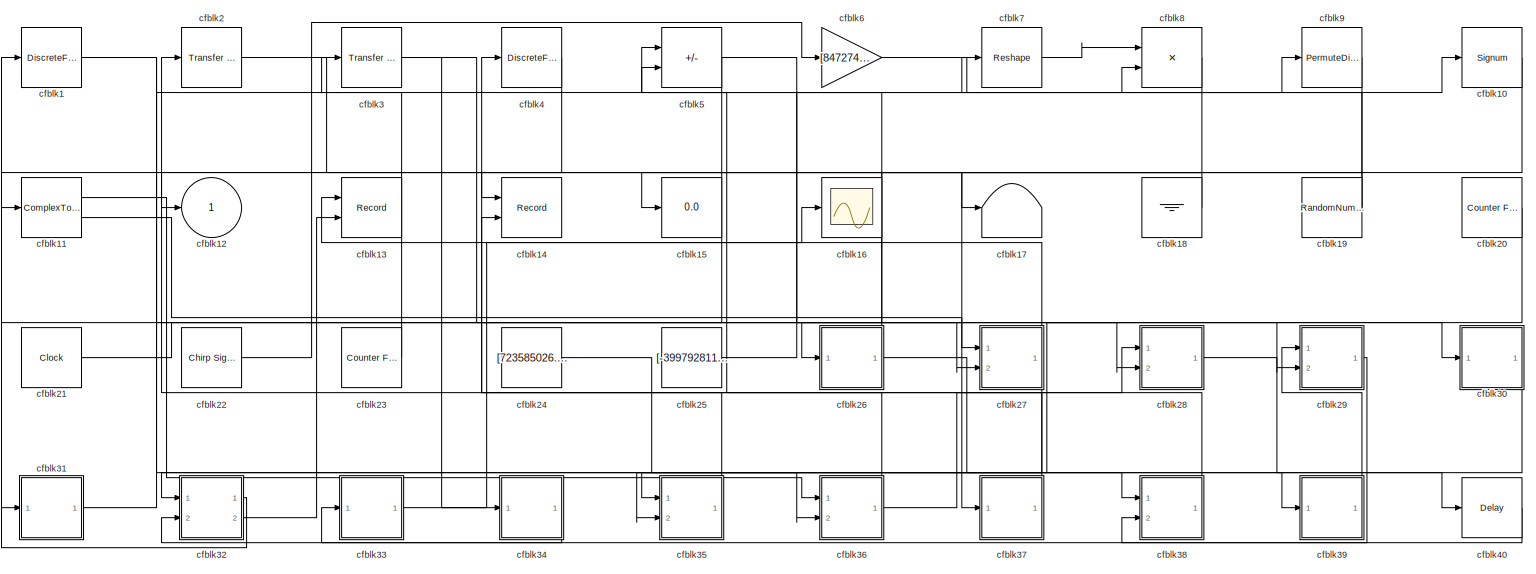
[diagram: root canvas - part 1/1, most of the canvas]
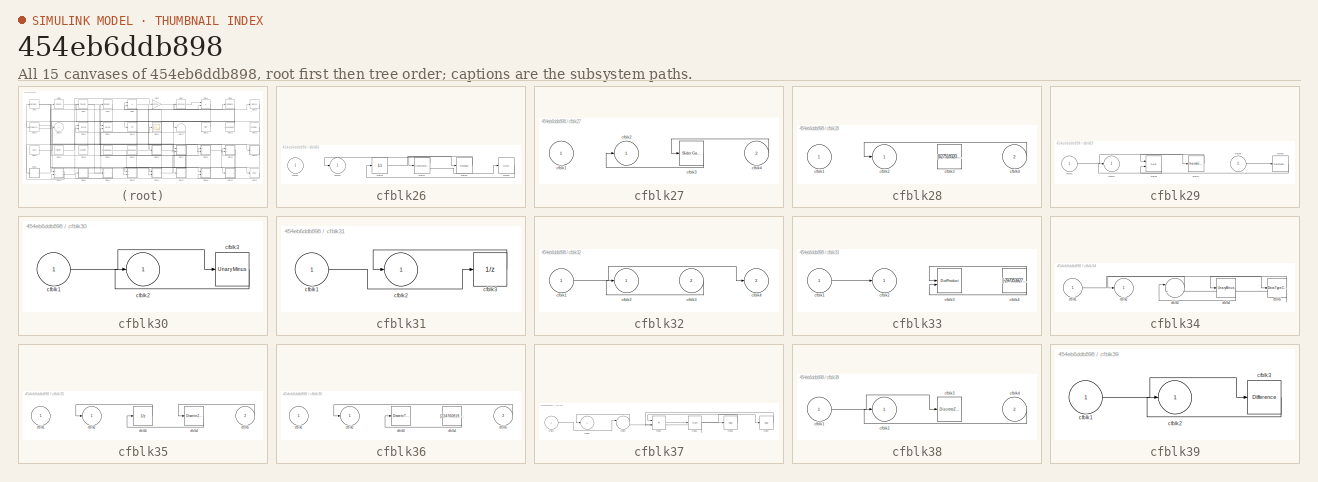
[diagram: thumbnail index - all 15 canvases of the model, root first then tree order]
MODEL slx_454eb6ddb898
KIND model
CONFIG AbsTol = auto
CONFIG EnableMultiTasking = off
CONFIG FixedStep = auto
CONFIG MaxStep = auto
CONFIG MinStep = auto
CONFIG RelTol = 1e-3
CONFIG SampleTimeConstraint = Unconstrained
CONFIG SolverName = VariableStepAuto
CONFIG StartTime = 0.0
CONFIG StopTime = 10.0
BLOCK [DiscreteFir] cfblk1
  InputPortMap = u0
  OutputPortMap = o0
  Ports = [1, 1]
  SampleTime = 1
BLOCK [Signum] cfblk10
BLOCK [ComplexToMagnitudeAngle] cfblk11
  Ports = [1, 2]
BLOCK [Outport] cfblk12
BLOCK [Record] cfblk13
  CompatibilityTag = XY
  FileSettingsInternal = {"entries":[{"content":{"excelSettings":{"content":{},"type":"Streamout.ExcelSettings"}},"type":"Streamout.FileSettingStorage","uuid":"afcd1033-900c-4ee9-9df4-e3060ae59736"}],"packageUris":["http://schema.mathworks.com/mf0/streamout_blocks/R2020a"],"version":"1.0"}
  Layout = [1 1]
  Ports = [2]
  SignalsInternal = {"entries":[{"content":{"signals":[{"content":{"blockPath":["sampleModel211/cfblk13"],"channel":[],"dimensions":[1],"domain":"sampleModel211/cfblk13","lineColor":"#a2142f","plots":[1],"port":1,"sid":[""],"signalID":8172,"signalName":"cfblk27"},"type":"RecordBlkView.Signal","uuid":"39aa8972-9eb6-4579-9132-f180a06a49c1"},{"content":{"blockPath":["sampleModel211/cfblk13"],"channel":[],"dimensions":[1...<+385ch>
  VisualizationBindings = {"xyplotplugin":{"info":[{"series":[{"bindingParametersList":[{"parameter":"X-Axis","signalID":8172,"signalName":"cfblk27"},{"parameter":"Y-Axis","signalID":8178,"signalName":"cfblk32:2"}],"seriesID":42711}],"subplotID":1}]}}
BLOCK [Record] cfblk14
  CompatibilityTag = XY
  FileSettingsInternal = {"entries":[{"content":{"excelSettings":{"content":{},"type":"Streamout.ExcelSettings"}},"type":"Streamout.FileSettingStorage","uuid":"20000c39-0e0b-4ded-a58f-0152ac3ac14a"}],"packageUris":["http://schema.mathworks.com/mf0/streamout_blocks/R2020a"],"version":"1.0"}
  Layout = [1 1]
  Ports = [2]
  SignalsInternal = {"entries":[{"content":{"signals":[{"content":{"blockPath":["sampleModel211/cfblk14"],"channel":[],"dimensions":[1],"domain":"sampleModel211/cfblk14","lineColor":"#139fff","plots":[1],"port":2,"sid":[""],"signalID":8182,"signalName":"cfblk36"},"type":"RecordBlkView.Signal","uuid":"7c038ca0-a94d-4e51-8edb-2469e55715a0"},{"content":{"blockPath":["sampleModel211/cfblk14"],"channel":[],"dimensions":[1...<+383ch>
  VisualizationBindings = {"xyplotplugin":{"info":[{"series":[{"bindingParametersList":[{"parameter":"X-Axis","signalID":8186,"signalName":"cfblk18"},{"parameter":"Y-Axis","signalID":8182,"signalName":"cfblk36"}],"seriesID":19308}],"subplotID":1}]}}
BLOCK [Display] cfblk15
  Decimation = 1
  Ports = [1]
BLOCK [Scope] cfblk16
  Floating = off
  NumInputPorts = 1
  Ports = [1]
BLOCK [Terminator] cfblk17
BLOCK [Ground] cfblk18
BLOCK [RandomNumber] cfblk19
  Mean = [89903.066414]
  SampleTime = 0.1
  Seed = [18408499.000000]
  Variance = [37427.790847]
BLOCK [Reference] cfblk2  REF=simulink/Discrete/Transfer Fcn
Real Zero
  Ports = [1, 1]
  SourceBlock = simulink/Discrete/Transfer Fcn\nReal Zero
  SourceProductBaseCode = SL
  SourceType = Transfer Fcn Real Zero
BLOCK [Reference] cfblk20  REF=simulink/Sources/Counter
Free-Running
  Ports = [0, 1]
  SourceBlock = simulink/Sources/Counter\nFree-Running
  SourceProductBaseCode = SL
  SourceType = Counter Free-Running
BLOCK [Clock] cfblk21
BLOCK [Reference] cfblk22  REF=simulink/Sources/Chirp Signal
  Ports = [0, 1]
  SourceBlock = simulink/Sources/Chirp Signal
  SourceProductBaseCode = SL
  SourceType = chirp
BLOCK [Reference] cfblk23  REF=simulink/Sources/Counter
Free-Running
  Ports = [0, 1]
  SourceBlock = simulink/Sources/Counter\nFree-Running
  SourceProductBaseCode = SL
  SourceType = Counter Free-Running
BLOCK [Constant] cfblk24
  SampleTime = 1
  Value = [723585026.080106]
BLOCK [Constant] cfblk25
  SampleTime = 1
  Value = [-399792811.287537]
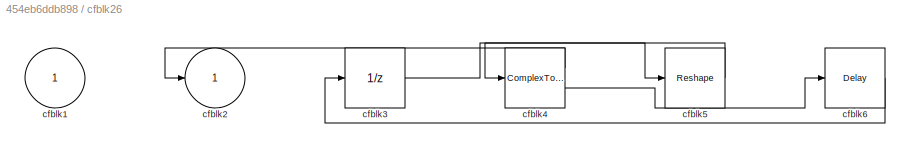
BLOCK [SubSystem] cfblk26
  Ports = [1, 1]
  RequestExecContextInheritance = off
BLOCK [Inport] cfblk26/cfblk1
BLOCK [Outport] cfblk26/cfblk2
BLOCK [UnitDelay] cfblk26/cfblk3
  HasFrameUpgradeWarning = on
BLOCK [ComplexToRealImag] cfblk26/cfblk4
  Ports = [1, 2]
BLOCK [Reshape] cfblk26/cfblk5
  Ports = [1, 1]
BLOCK [Delay] cfblk26/cfblk6
  InputPortMap = u0
  Ports = [1, 1]
  SampleTime = 1
BLOCK [SubSystem] cfblk27
  Ports = [2, 1]
  RequestExecContextInheritance = off
BLOCK [Inport] cfblk27/cfblk1
BLOCK [Outport] cfblk27/cfblk2
BLOCK [Reference] cfblk27/cfblk3  REF=simulink/Math
Operations/Slider
Gain
  Ports = [1, 1]
  SourceBlock = simulink/Math\nOperations/Slider\nGain
  SourceProductBaseCode = SL
  SourceType = Slider Gain
BLOCK [Inport] cfblk27/cfblk4
  Port = 2
BLOCK [SubSystem] cfblk28
  Ports = [2, 1]
  RequestExecContextInheritance = off
BLOCK [Inport] cfblk28/cfblk1
BLOCK [Outport] cfblk28/cfblk2
BLOCK [Constant] cfblk28/cfblk3
  SampleTime = 1
  Value = [627518320.309116]
BLOCK [Inport] cfblk28/cfblk4
  Port = 2
BLOCK [SubSystem] cfblk29
  Ports = [2, 1]
  RequestExecContextInheritance = off
BLOCK [Inport] cfblk29/cfblk1
BLOCK [Outport] cfblk29/cfblk2
BLOCK [Delay] cfblk29/cfblk3
  DelayLengthSource = Input port
  InputPortMap = u0,p1
  Ports = [2, 1]
  SampleTime = 1
BLOCK [Math] cfblk29/cfblk4
  Operator = hermitian
  Ports = [1, 1]
BLOCK [Inport] cfblk29/cfblk5
  Port = 2
BLOCK [DataTypeConversion] cfblk29/cfblk6
  RndMeth = Floor
  SaturateOnIntegerOverflow = off
BLOCK [Reference] cfblk3  REF=simulink/Discrete/Transfer Fcn
Lead or Lag
  Ports = [1, 1]
  SourceBlock = simulink/Discrete/Transfer Fcn\nLead or Lag
  SourceProductBaseCode = SL
  SourceType = Lead or Lag Compensator
BLOCK [SubSystem] cfblk30
  Ports = [1, 1]
  RequestExecContextInheritance = off
BLOCK [Inport] cfblk30/cfblk1
BLOCK [Outport] cfblk30/cfblk2
BLOCK [UnaryMinus] cfblk30/cfblk3
BLOCK [SubSystem] cfblk31
  Ports = [1, 1]
  RequestExecContextInheritance = off
BLOCK [Inport] cfblk31/cfblk1
BLOCK [Outport] cfblk31/cfblk2
BLOCK [UnitDelay] cfblk31/cfblk3
  HasFrameUpgradeWarning = on
BLOCK [SubSystem] cfblk32
  Ports = [2, 2]
  RequestExecContextInheritance = off
BLOCK [Inport] cfblk32/cfblk1
BLOCK [Outport] cfblk32/cfblk2
BLOCK [Inport] cfblk32/cfblk3
  Port = 2
BLOCK [Outport] cfblk32/cfblk4
  Port = 2
BLOCK [SubSystem] cfblk33
  Ports = [1, 1]
  RequestExecContextInheritance = off
BLOCK [Inport] cfblk33/cfblk1
BLOCK [Outport] cfblk33/cfblk2
BLOCK [DotProduct] cfblk33/cfblk3
  OutDataTypeStr = Inherit: Inherit via internal rule
BLOCK [Constant] cfblk33/cfblk4
  SampleTime = 1
  Value = [-297053927.236526]
BLOCK [SubSystem] cfblk34
  Ports = [1, 1]
  RequestExecContextInheritance = off
BLOCK [Inport] cfblk34/cfblk1
BLOCK [Outport] cfblk34/cfblk2
BLOCK [Sum] cfblk34/cfblk3
  Inputs = |++
  Ports = [2, 1]
BLOCK [UnaryMinus] cfblk34/cfblk4
BLOCK [DataTypeConversion] cfblk34/cfblk5
  RndMeth = Floor
  SaturateOnIntegerOverflow = off
BLOCK [SubSystem] cfblk35
  Ports = [2, 1]
  RequestExecContextInheritance = off
BLOCK [Inport] cfblk35/cfblk1
BLOCK [Outport] cfblk35/cfblk2
BLOCK [UnitDelay] cfblk35/cfblk3
  HasFrameUpgradeWarning = on
BLOCK [DiscreteZeroPole] cfblk35/cfblk4
  Gain = 1
  Poles = [0 0.5]
BLOCK [Inport] cfblk35/cfblk5
  Port = 2
BLOCK [SubSystem] cfblk36
  Ports = [2, 1]
  RequestExecContextInheritance = off
BLOCK [Inport] cfblk36/cfblk1
BLOCK [Outport] cfblk36/cfblk2
BLOCK [DiscreteTransferFcn] cfblk36/cfblk3
  InputPortMap = u0
  Ports = [1, 1]
  SampleTime = 1
BLOCK [Constant] cfblk36/cfblk4
  SampleTime = 1
  Value = [224760819.541699]
BLOCK [Inport] cfblk36/cfblk5
  Port = 2
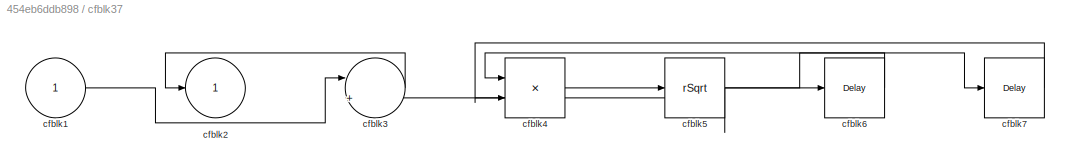
BLOCK [SubSystem] cfblk37
  Ports = [1, 1]
  RequestExecContextInheritance = off
BLOCK [Inport] cfblk37/cfblk1
BLOCK [Outport] cfblk37/cfblk2
BLOCK [Sum] cfblk37/cfblk3
  Inputs = |++
  Ports = [2, 1]
BLOCK [Product] cfblk37/cfblk4
  Inputs = **
  Ports = [2, 1]
BLOCK [Sqrt] cfblk37/cfblk5
  AlgorithmType = Newton-Raphson
  Operator = rSqrt
BLOCK [Delay] cfblk37/cfblk6
  InputPortMap = u0
  Ports = [1, 1]
  SampleTime = 1
BLOCK [Delay] cfblk37/cfblk7
  InputPortMap = u0
  Ports = [1, 1]
  SampleTime = 1
BLOCK [SubSystem] cfblk38
  Ports = [2, 1]
  RequestExecContextInheritance = off
BLOCK [Inport] cfblk38/cfblk1
BLOCK [Outport] cfblk38/cfblk2
BLOCK [DiscreteZeroPole] cfblk38/cfblk3
  Gain = 1
  Poles = [0 0.5]
BLOCK [Inport] cfblk38/cfblk4
  Port = 2
BLOCK [SubSystem] cfblk39
  Ports = [1, 1]
  RequestExecContextInheritance = off
BLOCK [Inport] cfblk39/cfblk1
BLOCK [Outport] cfblk39/cfblk2
BLOCK [Reference] cfblk39/cfblk3  REF=simulink/Discrete/Difference
  Ports = [1, 1]
  SourceBlock = simulink/Discrete/Difference
  SourceProductBaseCode = SL
  SourceType = Difference
BLOCK [DiscreteFir] cfblk4
  InputPortMap = u0
  OutputPortMap = o0
  Ports = [1, 1]
  SampleTime = 1
BLOCK [Delay] cfblk40
  InputPortMap = u0
  Ports = [1, 1]
  SampleTime = 1
BLOCK [Sum] cfblk5
  IconShape = rectangular
  Inputs = +-
  Ports = [2, 1]
BLOCK [Gain] cfblk6
  Gain = [847274654.415197]
BLOCK [Reshape] cfblk7
  Ports = [1, 1]
BLOCK [Product] cfblk8
  Inputs = **
  Ports = [2, 1]
BLOCK [PermuteDimensions] cfblk9
LINE cfblk10:1 -> cfblk37:1
LINE cfblk11:1 -> cfblk36:1
LINE cfblk11:2 -> cfblk27:1
LINE cfblk18:1 -> cfblk14:1
NET cfblk19:1 -> cfblk12:1, cfblk7:1
NET cfblk1:1 -> cfblk27:2, cfblk38:1
LINE cfblk20:1 -> cfblk32:1
LINE cfblk21:1 -> cfblk30:1
LINE cfblk22:1 -> cfblk6:1
LINE cfblk23:1 -> cfblk3:1
LINE cfblk24:1 -> cfblk36:2
LINE cfblk25:1 -> cfblk9:1
LINE cfblk26/cfblk3:1 -> cfblk26/cfblk5:1
LINE cfblk26/cfblk4:1 -> cfblk26/cfblk2:1
LINE cfblk26/cfblk4:2 -> cfblk26/cfblk6:1
LINE cfblk26/cfblk5:1 -> cfblk26/cfblk4:1
LINE cfblk26/cfblk6:1 -> cfblk26/cfblk3:1
NET cfblk26:1 -> cfblk39:1, cfblk5:2
LINE cfblk27/cfblk3:1 -> cfblk27/cfblk2:1
LINE cfblk27/cfblk4:1 -> cfblk27/cfblk3:1
NET cfblk27:1 -> cfblk13:1, cfblk35:2
LINE cfblk28/cfblk4:1 -> cfblk28/cfblk2:1
LINE cfblk28:1 -> cfblk40:1
LINE cfblk29/cfblk1:1 -> cfblk29/cfblk4:1
LINE cfblk29/cfblk3:1 -> cfblk29/cfblk2:1
LINE cfblk29/cfblk4:1 -> cfblk29/cfblk3:1
LINE cfblk29/cfblk5:1 -> cfblk29/cfblk6:1
LINE cfblk29/cfblk6:1 -> cfblk29/cfblk3:2
LINE cfblk29:1 -> cfblk33:1
LINE cfblk2:1 -> cfblk17:1
LINE cfblk30/cfblk1:1 -> cfblk30/cfblk3:1
LINE cfblk30/cfblk3:1 -> cfblk30/cfblk2:1
LINE cfblk30:1 -> cfblk35:1
LINE cfblk31/cfblk1:1 -> cfblk31/cfblk3:1
LINE cfblk31/cfblk3:1 -> cfblk31/cfblk2:1
LINE cfblk31:1 -> cfblk10:1
LINE cfblk32/cfblk1:1 -> cfblk32/cfblk4:1
LINE cfblk32/cfblk3:1 -> cfblk32/cfblk2:1
LINE cfblk32:1 -> cfblk1:1
LINE cfblk32:2 -> cfblk13:2
LINE cfblk33/cfblk1:1 -> cfblk33/cfblk2:1
NET cfblk33/cfblk4:1 -> cfblk33/cfblk3:1, cfblk33/cfblk3:2
LINE cfblk33:1 -> cfblk16:1
LINE cfblk34/cfblk1:1 -> cfblk34/cfblk5:1
LINE cfblk34/cfblk3:1 -> cfblk34/cfblk2:1
LINE cfblk34/cfblk4:1 -> cfblk34/cfblk3:1
NET cfblk34/cfblk5:1 -> cfblk34/cfblk3:2, cfblk34/cfblk4:1
LINE cfblk34:1 -> cfblk32:2
LINE cfblk35/cfblk3:1 -> cfblk35/cfblk2:1
LINE cfblk35/cfblk4:1 -> cfblk35/cfblk3:1
LINE cfblk35/cfblk5:1 -> cfblk35/cfblk4:1
LINE cfblk35:1 -> cfblk2:1
LINE cfblk36/cfblk4:1 -> cfblk36/cfblk3:1
LINE cfblk36/cfblk5:1 -> cfblk36/cfblk2:1
NET cfblk36:1 -> cfblk14:2, cfblk28:1
LINE cfblk37/cfblk1:1 -> cfblk37/cfblk3:1
LINE cfblk37/cfblk3:1 -> cfblk37/cfblk2:1
LINE cfblk37/cfblk4:1 -> cfblk37/cfblk5:1
NET cfblk37/cfblk5:1 -> cfblk37/cfblk3:2, cfblk37/cfblk6:1, cfblk37/cfblk7:1
LINE cfblk37/cfblk6:1 -> cfblk37/cfblk4:1
LINE cfblk37/cfblk7:1 -> cfblk37/cfblk4:2
LINE cfblk37:1 -> cfblk4:1
LINE cfblk38/cfblk1:1 -> cfblk38/cfblk3:1
LINE cfblk38/cfblk4:1 -> cfblk38/cfblk2:1
LINE cfblk38:1 -> cfblk5:1
LINE cfblk39/cfblk1:1 -> cfblk39/cfblk3:1
LINE cfblk39/cfblk3:1 -> cfblk39/cfblk2:1
LINE cfblk39:1 -> cfblk29:1
NET cfblk3:1 -> cfblk29:2, cfblk34:1
LINE cfblk40:1 -> cfblk38:2
LINE cfblk4:1 -> cfblk11:1
NET cfblk5:1 -> cfblk28:2, cfblk31:1
LINE cfblk6:1 -> cfblk8:2
LINE cfblk7:1 -> cfblk8:1
LINE cfblk8:1 -> cfblk15:1
LINE cfblk9:1 -> cfblk26:1
note: NET lines group one-source signal fan-out (src -> all destinations, sorted); 1:1 wires keep LINE
